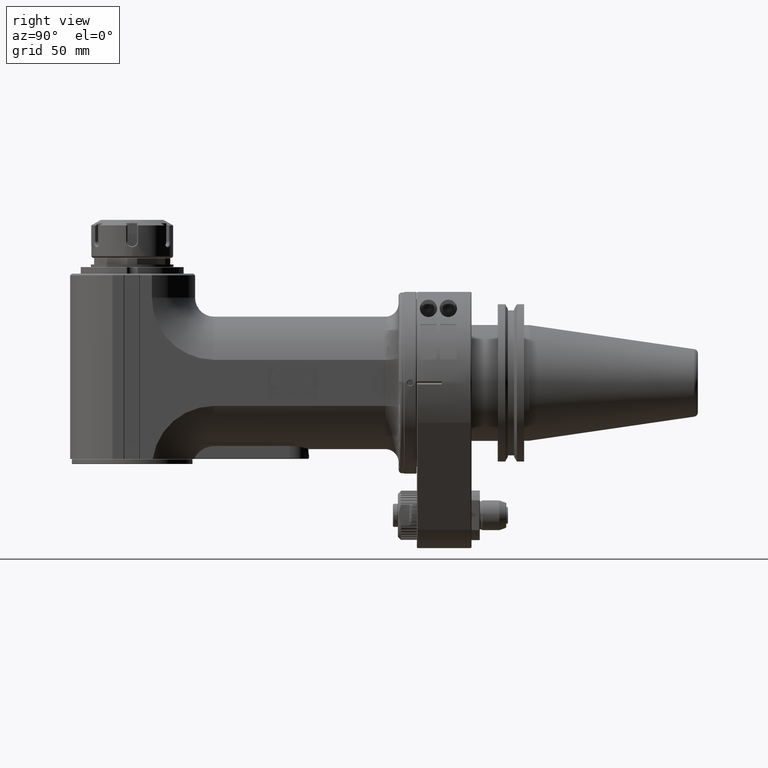
[diagram: clean part render]
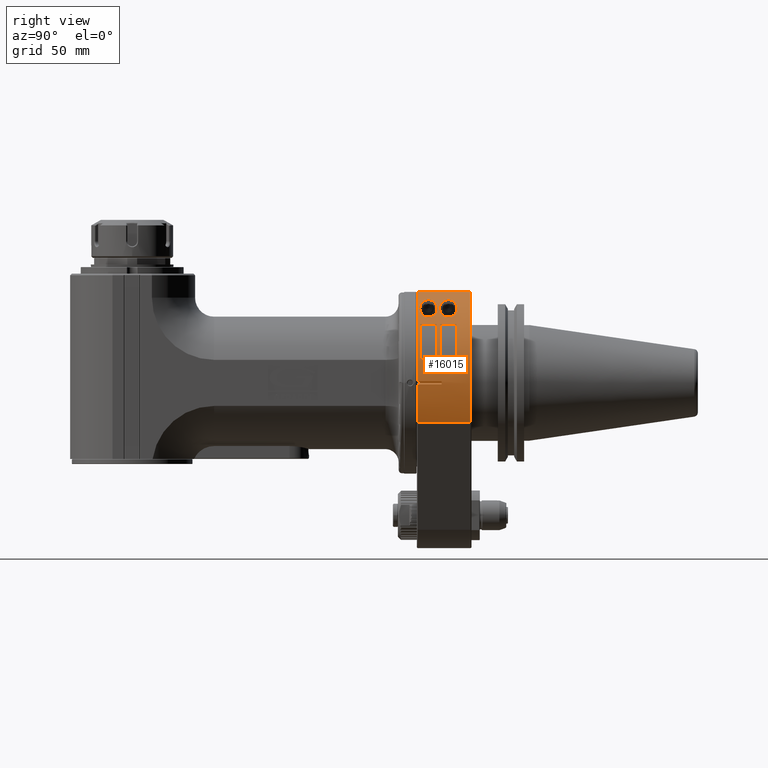
[diagram: same view with one face highlighted and labeled with its STEP entity id]
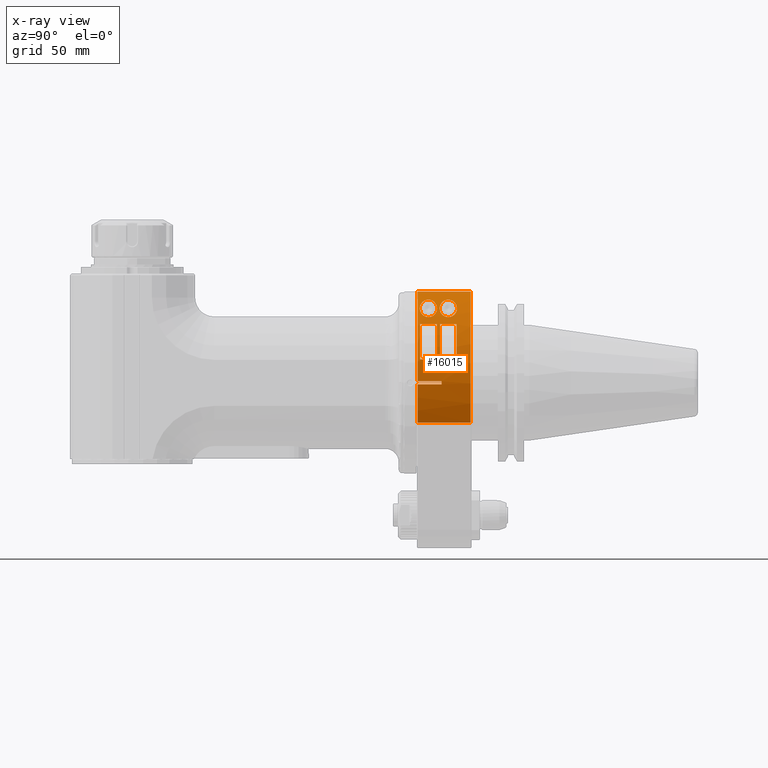
[diagram: x-ray of the same camera — body ghosted, the highlighted face saturated]
A machine part, right view. The second image highlights one B-rep face of the part: STEP entity #16015.
The next image is the same camera in x-ray: the body ghosted, the highlighted face saturated — about 0% of this face is hidden behind the body in this view.
In plain terms, the highlighted cylindrical surface (partial cylindrical patch) has radius 55 mm, axis along (0, 1, 0).
Its self-contained STEP definition (entity closure, byte-faithful):
#155=FACE_BOUND('',#2887,.T.);
#156=FACE_BOUND('',#2888,.T.);
#157=FACE_BOUND('',#2889,.T.);
#158=FACE_BOUND('',#2890,.T.);
#347=B_SPLINE_CURVE_WITH_KNOTS('',3,(#25594,#25595,#25596,#25597,#25598,
#25599,#25600,#25601,#25602,#25603,#25604,#25605,#25606,#25607,#25608,#25609,
#25610,#25611,#25612,#25613,#25614,#25615,#25616,#25617,#25618,#25619,#25620,
#25621,#25622,#25623,#25624,#25625,#25626,#25627,#25628,#25629,#25630,#25631),
 .UNSPECIFIED.,.T.,.F.,(4,2,2,2,2,2,2,2,2,2,2,2,2,2,2,2,2,2,4),(0.,0.105821861626843,
0.211643723253686,0.423287446507373,0.825706096954147,1.22812474740092,
1.55606609285812,1.88400743831532,2.07571908295912,2.26743072760292,2.45914237224672,
2.65085401689052,2.97879536234772,3.30673670780492,3.70915535825169,4.11157400869847,
4.32321773195215,4.429039593579,4.53486145520584),.UNSPECIFIED.);
#348=B_SPLINE_CURVE_WITH_KNOTS('',3,(#25634,#25635,#25636,#25637,#25638,
#25639,#25640,#25641,#25642,#25643,#25644,#25645,#25646,#25647,#25648,#25649,
#25650,#25651,#25652,#25653),.UNSPECIFIED.,.F.,.F.,(4,2,2,2,2,2,2,2,2,4),
(1.22812474740092,1.55606609285812,1.88400743831532,2.07571908295912,2.26743072760292,
2.37795822342875,2.48848571925458,2.70954071090624,3.00842289413588,3.30730507736551),
 .UNSPECIFIED.);
#349=B_SPLINE_CURVE_WITH_KNOTS('',3,(#25654,#25655,#25656,#25657,#25658,
#25659,#25660,#25661,#25662,#25663,#25664,#25665,#25666,#25667,#25668,#25669,
#25670,#25671,#25672,#25673,#25674,#25675,#25676),.UNSPECIFIED.,.F.,.F.,
(4,2,2,2,2,3,2,2,2,2,4),(3.30730507736551,3.70972372781229,4.11214237825906,
4.32378610151275,4.42960796313959,4.53542982476643,4.64125168639328,4.74707354802012,
4.95871727127381,5.36113592172058,5.76355457216735),.UNSPECIFIED.);
#945=CIRCLE('',#17001,55.);
#947=CIRCLE('',#17006,55.);
#1093=CIRCLE('',#17312,55.);
#1094=CIRCLE('',#17314,55.);
#1095=CIRCLE('',#17315,55.);
#1096=CIRCLE('',#17316,55.);
#1097=CIRCLE('',#17317,55.);
#1098=CIRCLE('',#17318,55.);
#1584=CYLINDRICAL_SURFACE('',#17313,55.);
#1929=FACE_OUTER_BOUND('',#2886,.T.);
#2886=EDGE_LOOP('',(#11695,#11696,#11697,#11698,#11699,#11700,#11701,#11702));
#2887=EDGE_LOOP('',(#11703));
#2888=EDGE_LOOP('',(#11704,#11705));
#2889=EDGE_LOOP('',(#11706,#11707,#11708,#11709));
#2890=EDGE_LOOP('',(#11710,#11711,#11712,#11713));
#3900=LINE('',#23959,#5222);
#3904=LINE('',#23967,#5226);
#3909=LINE('',#23993,#5231);
#4112=LINE('',#25586,#5434);
#4114=LINE('',#25679,#5436);
#4115=LINE('',#25683,#5437);
#4116=LINE('',#25687,#5438);
#4117=LINE('',#25691,#5439);
#5222=VECTOR('',#19063,14.49979222352);
#5226=VECTOR('',#19069,14.49979213837);
#5231=VECTOR('',#19082,10.);
#5434=VECTOR('',#19889,31.9997413815);
#5436=VECTOR('',#19901,10.);
#5437=VECTOR('',#19904,10.);
#5438=VECTOR('',#19907,10.);
#5439=VECTOR('',#19910,10.);
#6689=VERTEX_POINT('',#23950);
#6690=VERTEX_POINT('',#23954);
#6691=VERTEX_POINT('',#23958);
#6693=VERTEX_POINT('',#23964);
#6694=VERTEX_POINT('',#23966);
#6695=VERTEX_POINT('',#23970);
#6702=VERTEX_POINT('',#23992);
#6954=VERTEX_POINT('',#25584);
#6955=VERTEX_POINT('',#25593);
#6956=VERTEX_POINT('',#25632);
#6957=VERTEX_POINT('',#25633);
#6958=VERTEX_POINT('',#25677);
#6959=VERTEX_POINT('',#25678);
#6960=VERTEX_POINT('',#25680);
#6961=VERTEX_POINT('',#25682);
#6962=VERTEX_POINT('',#25685);
#6963=VERTEX_POINT('',#25686);
#6964=VERTEX_POINT('',#25688);
#6965=VERTEX_POINT('',#25690);
#8326=EDGE_CURVE('',#6690,#6689,#945,.T.);
#8327=EDGE_CURVE('',#6690,#6691,#3900,.T.);
#8331=EDGE_CURVE('',#6693,#6694,#3904,.T.);
#8333=EDGE_CURVE('',#6695,#6694,#947,.T.);
#8341=EDGE_CURVE('',#6695,#6702,#3909,.T.);
#8749=EDGE_CURVE('',#6954,#6689,#4112,.T.);
#8751=EDGE_CURVE('',#6954,#6702,#1093,.T.);
#8752=EDGE_CURVE('',#6691,#6693,#1094,.T.);
#8753=EDGE_CURVE('',#6955,#6955,#347,.T.);
#8754=EDGE_CURVE('',#6956,#6957,#348,.T.);
#8755=EDGE_CURVE('',#6957,#6956,#349,.T.);
#8756=EDGE_CURVE('',#6958,#6959,#4114,.T.);
#8757=EDGE_CURVE('',#6958,#6960,#1095,.T.);
#8758=EDGE_CURVE('',#6961,#6960,#4115,.T.);
#8759=EDGE_CURVE('',#6961,#6959,#1096,.T.);
#8760=EDGE_CURVE('',#6962,#6963,#4116,.T.);
#8761=EDGE_CURVE('',#6962,#6964,#1097,.T.);
#8762=EDGE_CURVE('',#6965,#6964,#4117,.T.);
#8763=EDGE_CURVE('',#6965,#6963,#1098,.T.);
#11695=ORIENTED_EDGE('',*,*,#8752,.F.);
#11696=ORIENTED_EDGE('',*,*,#8327,.F.);
#11697=ORIENTED_EDGE('',*,*,#8326,.T.);
#11698=ORIENTED_EDGE('',*,*,#8749,.F.);
#11699=ORIENTED_EDGE('',*,*,#8751,.T.);
#11700=ORIENTED_EDGE('',*,*,#8341,.F.);
#11701=ORIENTED_EDGE('',*,*,#8333,.T.);
#11702=ORIENTED_EDGE('',*,*,#8331,.F.);
#11703=ORIENTED_EDGE('',*,*,#8753,.F.);
#11704=ORIENTED_EDGE('',*,*,#8754,.F.);
#11705=ORIENTED_EDGE('',*,*,#8755,.F.);
#11706=ORIENTED_EDGE('',*,*,#8756,.F.);
#11707=ORIENTED_EDGE('',*,*,#8757,.T.);
#11708=ORIENTED_EDGE('',*,*,#8758,.F.);
#11709=ORIENTED_EDGE('',*,*,#8759,.T.);
#11710=ORIENTED_EDGE('',*,*,#8760,.F.);
#11711=ORIENTED_EDGE('',*,*,#8761,.T.);
#11712=ORIENTED_EDGE('',*,*,#8762,.F.);
#11713=ORIENTED_EDGE('',*,*,#8763,.T.);
#16015=ADVANCED_FACE('',(#1929,#155,#156,#157,#158),#1584,.T.);
#17001=AXIS2_PLACEMENT_3D('',#23956,#19059,#19060);
#17006=AXIS2_PLACEMENT_3D('',#23971,#19074,#19075);
#17312=AXIS2_PLACEMENT_3D('',#25590,#19895,#19896);
#17313=AXIS2_PLACEMENT_3D('',#25591,#19897,#19898);
#17314=AXIS2_PLACEMENT_3D('',#25592,#19899,#19900);
#17315=AXIS2_PLACEMENT_3D('',#25681,#19902,#19903);
#17316=AXIS2_PLACEMENT_3D('',#25684,#19905,#19906);
#17317=AXIS2_PLACEMENT_3D('',#25689,#19908,#19909);
#17318=AXIS2_PLACEMENT_3D('',#25692,#19911,#19912);
#19059=DIRECTION('center_axis',(0.,1.,0.));
#19060=DIRECTION('ref_axis',(0.999837636446488,0.,-0.0180194546282998));
#19063=DIRECTION('',(-8.56568601906799E-10,0.999999999999999,-4.752937292376E-8));
#19069=DIRECTION('',(9.07680393725399E-10,-0.999999999999999,-5.03663897066399E-8));
#19074=DIRECTION('center_axis',(0.,1.,0.));
#19075=DIRECTION('ref_axis',(0.0136363636363699,0.,0.999907020470792));
#19082=DIRECTION('',(0.,1.,0.));
#19889=DIRECTION('',(7.424987347099E-11,-1.,1.503411777327E-10));
#19895=DIRECTION('center_axis',(0.,-1.,0.));
#19896=DIRECTION('ref_axis',(1.,0.,-1.449883258901E-14));
#19897=DIRECTION('center_axis',(0.,1.,0.));
#19898=DIRECTION('ref_axis',(1.,0.,0.));
#19899=DIRECTION('center_axis',(0.,-1.,0.));
#19900=DIRECTION('ref_axis',(0.999837636446488,0.,-0.0180194546282998));
#19901=DIRECTION('',(-8.810729923425E-14,-1.,1.222133505507E-13));
#19902=DIRECTION('center_axis',(0.,1.,0.));
#19903=DIRECTION('ref_axis',(0.766044443119006,0.,0.642787609686505));
#19904=DIRECTION('',(-1.136868377216E-14,1.,3.339550858072E-14));
#19905=DIRECTION('center_axis',(0.,-1.,0.));
#19906=DIRECTION('ref_axis',(0.965925826289076,0.,0.258819045102493));
#19907=DIRECTION('',(-8.810729923425E-14,-1.,1.222133505507E-13));
#19908=DIRECTION('center_axis',(0.,1.,0.));
#19909=DIRECTION('ref_axis',(0.766044443119006,0.,0.642787609686505));
#19910=DIRECTION('',(-1.136868377216E-14,1.,3.339550858072E-14));
#19911=DIRECTION('center_axis',(0.,-1.,0.));
#19912=DIRECTION('ref_axis',(0.965925826289076,0.,0.258819045102493));
#23950=CARTESIAN_POINT('',(49.4570126806822,0.500103484141412,-24.0625000925985));
#23954=CARTESIAN_POINT('',(54.9910700909957,0.500206459749151,-0.991069075924131));
#23956=CARTESIAN_POINT('Origin',(-4.360955940728E-13,0.5002063537157,5.062617992291E-14));
#23958=CARTESIAN_POINT('',(54.99107000456,15.,-0.9910700045573));
#23959=CARTESIAN_POINT('',(54.99107001698,0.5002077764822,-0.9910693153912));
#23964=CARTESIAN_POINT('',(54.99107000456,15.,0.9910700045563));
#23966=CARTESIAN_POINT('',(54.9910700961627,0.500206466095055,0.991069020462008));
#23967=CARTESIAN_POINT('',(54.99107000456,15.,0.9910700045563));
#23970=CARTESIAN_POINT('',(0.75000000000781,0.500206352739019,54.994886125489));
#23971=CARTESIAN_POINT('Origin',(-4.360955940728E-13,0.5002063537161,5.062617992291E-14));
#23992=CARTESIAN_POINT('',(0.750000000009419,32.4997254719053,54.9948861254054));
#23993=CARTESIAN_POINT('',(0.75,0.,54.9948861258936));
#25584=CARTESIAN_POINT('',(49.4570126926282,32.4998623897335,-24.0625001043884));
#25586=CARTESIAN_POINT('',(49.45701256376,32.49985311079,-24.06250004169));
#25590=CARTESIAN_POINT('Origin',(3.099742784753E-13,32.49972547073,8.109069071862E-13));
#25591=CARTESIAN_POINT('Origin',(0.,0.,0.));
#25592=CARTESIAN_POINT('Origin',(0.,15.,0.));
#25593=CARTESIAN_POINT('',(31.62277660168,12.25,45.));
#25594=CARTESIAN_POINT('Ctrl Pts',(22.359282188836,7.,50.25));
#25595=CARTESIAN_POINT('Ctrl Pts',(22.359282188836,6.64726046124386,50.25));
#25596=CARTESIAN_POINT('Ctrl Pts',(22.4381099921895,6.31880227440667,50.2150570528148));
#25597=CARTESIAN_POINT('Ctrl Pts',(22.7007375870288,5.70281894533053,50.0968786239534));
#25598=CARTESIAN_POINT('Ctrl Pts',(22.8850282674696,5.41556399196847,50.0133266097513));
#25599=CARTESIAN_POINT('Ctrl Pts',(23.5370638105094,4.61472949587357,49.7115285158905));
#25600=CARTESIAN_POINT('Ctrl Pts',(24.1028469148803,4.16443208848012,49.4411114963015));
#25601=CARTESIAN_POINT('Ctrl Pts',(25.6821344667263,3.13060078338722,48.6494428766399));
#25602=CARTESIAN_POINT('Ctrl Pts',(26.8839711623068,2.61985033648001,48.0024407536036));
#25603=CARTESIAN_POINT('Ctrl Pts',(29.3047316823218,1.9251641119243,46.5640949376125));
#25604=CARTESIAN_POINT('Ctrl Pts',(30.5252711913744,1.75,45.7712481868745));
#25605=CARTESIAN_POINT('Ctrl Pts',(32.5171620892943,1.75,44.3714899451001));
#25606=CARTESIAN_POINT('Ctrl Pts',(33.4716036859161,1.86719249710401,43.6569282909293));
#25607=CARTESIAN_POINT('Ctrl Pts',(35.2356449795447,2.46512701854205,42.2460051911268));
#25608=CARTESIAN_POINT('Ctrl Pts',(36.0461294372384,2.9442867896724,41.5500800128852));
#25609=CARTESIAN_POINT('Ctrl Pts',(37.056662342531,4.02175502352768,40.6454688574234));
#25610=CARTESIAN_POINT('Ctrl Pts',(37.4051541536747,4.53377679096085,40.3232185821916));
#25611=CARTESIAN_POINT('Ctrl Pts',(37.8832559421395,5.70284893103058,39.8743830355923));
#25612=CARTESIAN_POINT('Ctrl Pts',(38.0123335247917,6.36096118452067,39.75));
#25613=CARTESIAN_POINT('Ctrl Pts',(38.0123335247917,7.63903881547933,39.75));
#25614=CARTESIAN_POINT('Ctrl Pts',(37.8832559421395,8.29715106896942,39.8743830355923));
#25615=CARTESIAN_POINT('Ctrl Pts',(37.4051541536747,9.46622320903915,40.3232185821916));
#25616=CARTESIAN_POINT('Ctrl Pts',(37.056662342531,9.97824497647232,40.6454688574234));
#25617=CARTESIAN_POINT('Ctrl Pts',(36.0461294372384,11.0557132103276,41.5500800128852));
#25618=CARTESIAN_POINT('Ctrl Pts',(35.2356449795447,11.534872981458,42.2460051911268));
#25619=CARTESIAN_POINT('Ctrl Pts',(33.4716036859161,12.132807502896,43.6569282909293));
#25620=CARTESIAN_POINT('Ctrl Pts',(32.5171620892943,12.25,44.3714899451001));
#25621=CARTESIAN_POINT('Ctrl Pts',(30.5252711913744,12.25,45.7712481868745));
#25622=CARTESIAN_POINT('Ctrl Pts',(29.3047316823218,12.0748358880757,46.5640949376125));
#25623=CARTESIAN_POINT('Ctrl Pts',(26.8839711623068,11.38014966352,48.0024407536036));
#25624=CARTESIAN_POINT('Ctrl Pts',(25.6821344667263,10.8693992166128,48.6494428766399));
#25625=CARTESIAN_POINT('Ctrl Pts',(24.1028469148803,9.83556791151988,49.4411114963015));
#25626=CARTESIAN_POINT('Ctrl Pts',(23.5370638105093,9.38527050412644,49.7115285158905));
#25627=CARTESIAN_POINT('Ctrl Pts',(22.8850282674696,8.58443600803154,50.0133266097513));
#25628=CARTESIAN_POINT('Ctrl Pts',(22.7007375870289,8.29718105466945,50.0968786239534));
#25629=CARTESIAN_POINT('Ctrl Pts',(22.4381099921895,7.68119772559331,50.2150570528148));
#25630=CARTESIAN_POINT('Ctrl Pts',(22.359282188836,7.35273953875614,50.25));
#25631=CARTESIAN_POINT('Ctrl Pts',(22.359282188836,7.,50.25));
#25632=CARTESIAN_POINT('',(31.62277660168,13.75,45.));
#25633=CARTESIAN_POINT('',(31.6227766016838,24.25,45.));
#25634=CARTESIAN_POINT('Ctrl Pts',(31.6227766016838,13.75,45.));
#25635=CARTESIAN_POINT('Ctrl Pts',(32.5171620892943,13.75,44.3714899451001));
#25636=CARTESIAN_POINT('Ctrl Pts',(33.4716036859161,13.867192497104,43.6569282909293));
#25637=CARTESIAN_POINT('Ctrl Pts',(35.2356449795447,14.465127018542,42.2460051911268));
#25638=CARTESIAN_POINT('Ctrl Pts',(36.0461294372384,14.9442867896724,41.5500800128852));
#25639=CARTESIAN_POINT('Ctrl Pts',(37.056662342531,16.0217550235277,40.6454688574234));
#25640=CARTESIAN_POINT('Ctrl Pts',(37.4051541536747,16.5337767909609,40.3232185821916));
#25641=CARTESIAN_POINT('Ctrl Pts',(37.8832559421395,17.7028489310306,39.8743830355923));
#25642=CARTESIAN_POINT('Ctrl Pts',(38.0123335247917,18.3609611845207,39.75));
#25643=CARTESIAN_POINT('Ctrl Pts',(38.0123335247917,19.3684249860861,39.75));
#25644=CARTESIAN_POINT('Ctrl Pts',(37.9712869988568,19.7386473676736,39.7893661500424));
#25645=CARTESIAN_POINT('Ctrl Pts',(37.8105442937832,20.4541041827388,39.9421461016003));
#25646=CARTESIAN_POINT('Ctrl Pts',(37.6908407615871,20.7993482499394,40.0555070480252));
#25647=CARTESIAN_POINT('Ctrl Pts',(37.235508078841,21.7624861983674,40.4807294278944));
#25648=CARTESIAN_POINT('Ctrl Pts',(36.7978178643462,22.3061399327106,40.8815187302518));
#25649=CARTESIAN_POINT('Ctrl Pts',(35.71229499596,23.2614824397103,41.8368612372516));
#25650=CARTESIAN_POINT('Ctrl Pts',(34.9480846551228,23.6586206131069,42.4820070840882));
#25651=CARTESIAN_POINT('Ctrl Pts',(33.3110132030859,24.152516379099,43.7774594084858));
#25652=CARTESIAN_POINT('Ctrl Pts',(32.4379098286737,24.25,44.4271827569397));
#25653=CARTESIAN_POINT('Ctrl Pts',(31.6227766016838,24.25,45.));
#25654=CARTESIAN_POINT('Ctrl Pts',(31.6227766016838,24.25,45.));
#25655=CARTESIAN_POINT('Ctrl Pts',(30.5252711913744,24.25,45.7712481868745));
#25656=CARTESIAN_POINT('Ctrl Pts',(29.3047316823218,24.0748358880757,46.5640949376125));
#25657=CARTESIAN_POINT('Ctrl Pts',(26.8839711623068,23.38014966352,48.0024407536036));
#25658=CARTESIAN_POINT('Ctrl Pts',(25.6821344667263,22.8693992166128,48.6494428766399));
#25659=CARTESIAN_POINT('Ctrl Pts',(24.1028469148803,21.8355679115199,49.4411114963015));
#25660=CARTESIAN_POINT('Ctrl Pts',(23.5370638105094,21.3852705041264,49.7115285158905));
#25661=CARTESIAN_POINT('Ctrl Pts',(22.8850282674696,20.5844360080315,50.0133266097513));
#25662=CARTESIAN_POINT('Ctrl Pts',(22.7007375870288,20.2971810546695,50.0968786239534));
#25663=CARTESIAN_POINT('Ctrl Pts',(22.4381099921895,19.6811977255933,50.2150570528148));
#25664=CARTESIAN_POINT('Ctrl Pts',(22.359282188836,19.3527395387561,50.25));
#25665=CARTESIAN_POINT('Ctrl Pts',(22.359282188836,19.,50.25));
#25666=CARTESIAN_POINT('Ctrl Pts',(22.359282188836,18.6472604612439,50.25));
#25667=CARTESIAN_POINT('Ctrl Pts',(22.4381099921895,18.3188022744067,50.2150570528148));
#25668=CARTESIAN_POINT('Ctrl Pts',(22.7007375870288,17.7028189453305,50.0968786239534));
#25669=CARTESIAN_POINT('Ctrl Pts',(22.8850282674696,17.4155639919685,50.0133266097513));
#25670=CARTESIAN_POINT('Ctrl Pts',(23.5370638105094,16.6147294958736,49.7115285158905));
#25671=CARTESIAN_POINT('Ctrl Pts',(24.1028469148803,16.1644320884801,49.4411114963015));
#25672=CARTESIAN_POINT('Ctrl Pts',(25.6821344667263,15.1306007833872,48.6494428766399));
#25673=CARTESIAN_POINT('Ctrl Pts',(26.8839711623068,14.61985033648,48.0024407536036));
#25674=CARTESIAN_POINT('Ctrl Pts',(29.3047316823218,13.9251641119243,46.5640949376125));
#25675=CARTESIAN_POINT('Ctrl Pts',(30.5252711913744,13.75,45.7712481868745));
#25676=CARTESIAN_POINT('Ctrl Pts',(31.6227766016838,13.75,45.));
#25677=CARTESIAN_POINT('',(42.13244437154,12.,35.35331853276));
#25678=CARTESIAN_POINT('',(42.13244437154,2.,35.35331853276));
#25679=CARTESIAN_POINT('',(42.13244437154,12.,35.35331853276));
#25680=CARTESIAN_POINT('',(53.1259204459,12.,14.23504748064));
#25681=CARTESIAN_POINT('Origin',(0.,12.,0.));
#25682=CARTESIAN_POINT('',(53.1259204459,2.,14.23504748064));
#25683=CARTESIAN_POINT('',(53.1259204459,2.,14.23504748064));
#25684=CARTESIAN_POINT('Origin',(0.,2.,0.));
#25685=CARTESIAN_POINT('',(42.13244437154,24.,35.35331853276));
#25686=CARTESIAN_POINT('',(42.13244437154,14.,35.35331853276));
#25687=CARTESIAN_POINT('',(42.13244437154,24.,35.35331853276));
#25688=CARTESIAN_POINT('',(53.1259204459,24.,14.23504748064));
#25689=CARTESIAN_POINT('Origin',(0.,24.,0.));
#25690=CARTESIAN_POINT('',(53.1259204459,14.,14.23504748064));
#25691=CARTESIAN_POINT('',(53.1259204459,14.,14.23504748064));
#25692=CARTESIAN_POINT('Origin',(0.,14.,0.));